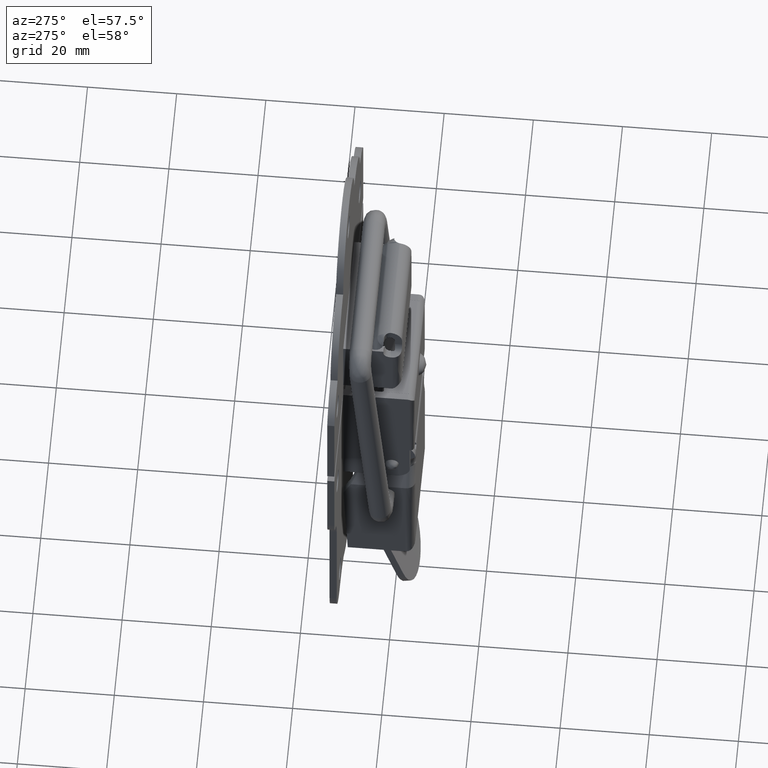
[diagram: clean part render]
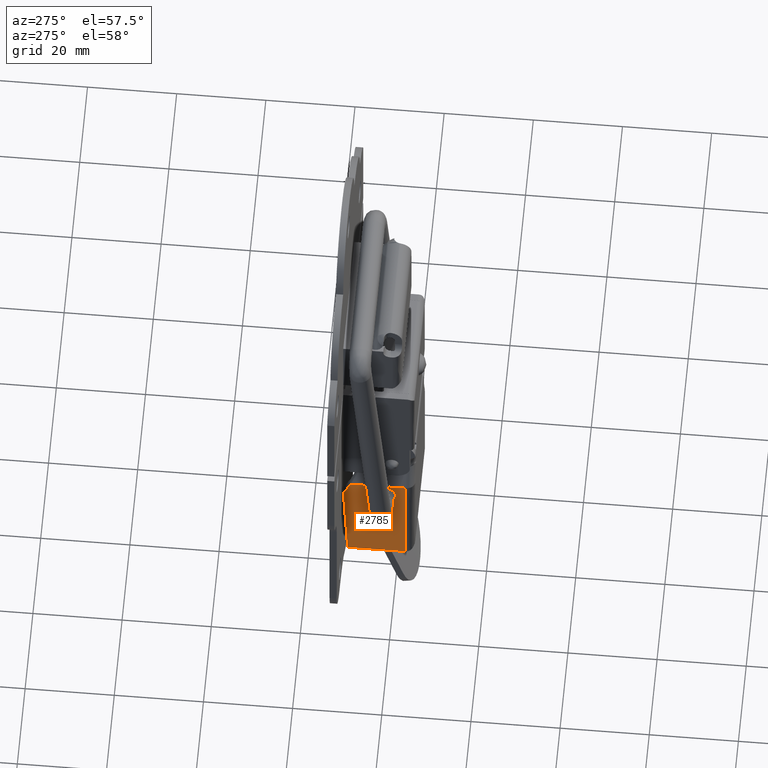
[diagram: same view with one face highlighted and labeled with its STEP entity id]
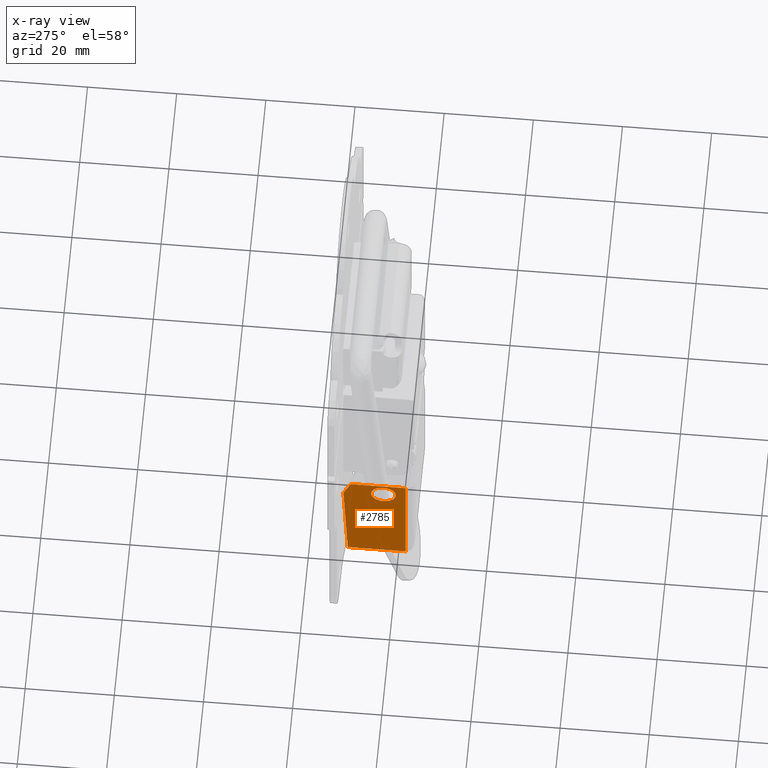
[diagram: x-ray of the same camera — body ghosted, the highlighted face saturated]
A machine part, auxiliary view. The second image highlights one B-rep face of the part: STEP entity #2785.
The next image is the same camera in x-ray: the body ghosted, the highlighted face saturated — about 0% of this face is hidden behind the body in this view.
In plain terms, the highlighted face is a freeform B-spline surface patch.
Its self-contained STEP definition (entity closure, byte-faithful):
#868=CARTESIAN_POINT('',(-14.100000000000000,-0.841522903652968,-12.784240484018291));
#869=VERTEX_POINT('',#868);
#875=CARTESIAN_POINT('',(-14.100000000000000,1.900000000000090,-10.250000000000000));
#876=VERTEX_POINT('',#875);
#877=CARTESIAN_POINT('',(-14.100000000000000,1.900000000000090,-10.250000000000000));
#878=CARTESIAN_POINT('',(-14.100000000000001,-0.642076639870185,-10.249999999999998));
#879=CARTESIAN_POINT('',(-14.099999999999998,-0.841522903652968,-12.784240484018284));
#887=(BOUNDED_CURVE()B_SPLINE_CURVE(2,(#877,#878,#879),.UNSPECIFIED.,.F.,.U.)B_SPLINE_CURVE_WITH_KNOTS((3,3),(0.0,0.236331488048878),.UNSPECIFIED.)CURVE()GEOMETRIC_REPRESENTATION_ITEM()RATIONAL_B_SPLINE_CURVE((1.0,0.723120439033564,0.969723747295271))REPRESENTATION_ITEM(''));
#888=EDGE_CURVE('',#876,#869,#887,.T.);
#890=CARTESIAN_POINT('',(-14.100000000000000,4.641522903653148,-13.215759515981709));
#891=VERTEX_POINT('',#890);
#892=CARTESIAN_POINT('',(-14.099999999999998,4.641522903653148,-13.215759515981709));
#893=CARTESIAN_POINT('',(-14.100000000000005,4.650000000000090,-13.108046288681633));
#894=CARTESIAN_POINT('',(-14.100000000000000,4.650000000000090,-13.0));
#895=CARTESIAN_POINT('',(-14.100000000000000,4.650000000000090,-10.249999999999998));
#896=CARTESIAN_POINT('',(-14.100000000000000,1.900000000000090,-10.250000000000000));
#904=(BOUNDED_CURVE()B_SPLINE_CURVE(2,(#892,#893,#894,#895,#896),.UNSPECIFIED.,.F.,.U.)B_SPLINE_CURVE_WITH_KNOTS((3,2,3),(0.736331488048878,0.750000000000000,1.0),.UNSPECIFIED.)CURVE()GEOMETRIC_REPRESENTATION_ITEM()RATIONAL_B_SPLINE_CURVE((0.969723747295272,0.983986342152983,1.0,0.707106781186548,1.0))REPRESENTATION_ITEM(''));
#905=EDGE_CURVE('',#891,#876,#904,.T.);
#981=CARTESIAN_POINT('',(-14.100000000000000,1.900000000000090,-15.750000000000000));
#982=VERTEX_POINT('',#981);
#983=CARTESIAN_POINT('',(-14.100000000000000,1.900000000000090,-15.750000000000000));
#984=CARTESIAN_POINT('',(-14.099999999999994,4.442076639870369,-15.750000000000007));
#985=CARTESIAN_POINT('',(-14.099999999999998,4.641522903653148,-13.215759515981709));
#993=(BOUNDED_CURVE()B_SPLINE_CURVE(2,(#983,#984,#985),.UNSPECIFIED.,.F.,.U.)B_SPLINE_CURVE_WITH_KNOTS((3,3),(0.500000000000000,0.736331488048878),.UNSPECIFIED.)CURVE()GEOMETRIC_REPRESENTATION_ITEM()RATIONAL_B_SPLINE_CURVE((1.0,0.723120439033564,0.969723747295272))REPRESENTATION_ITEM(''));
#994=EDGE_CURVE('',#982,#891,#993,.T.);
#996=CARTESIAN_POINT('',(-14.099999999999994,-0.841522903652968,-12.784240484018291));
#997=CARTESIAN_POINT('',(-14.099999999999996,-0.849999999999910,-12.891953711318370));
#998=CARTESIAN_POINT('',(-14.100000000000000,-0.849999999999910,-13.0));
#999=CARTESIAN_POINT('',(-14.100000000000000,-0.849999999999910,-15.750000000000009));
#1000=CARTESIAN_POINT('',(-14.100000000000000,1.900000000000090,-15.750000000000000));
#1008=(BOUNDED_CURVE()B_SPLINE_CURVE(2,(#996,#997,#998,#999,#1000),.UNSPECIFIED.,.F.,.U.)B_SPLINE_CURVE_WITH_KNOTS((3,2,3),(0.236331488048878,0.250000000000000,0.500000000000000),.UNSPECIFIED.)CURVE()GEOMETRIC_REPRESENTATION_ITEM()RATIONAL_B_SPLINE_CURVE((0.969723747295271,0.983986342152983,1.0,0.707106781186548,1.0))REPRESENTATION_ITEM(''));
#1009=EDGE_CURVE('',#869,#982,#1008,.T.);
#1304=CARTESIAN_POINT('',(-14.100000000000000,-3.100000000000000,-36.0));
#1305=VERTEX_POINT('',#1304);
#1721=CARTESIAN_POINT('',(-14.100000000000000,-3.100000000000000,-9.728043546529980));
#1722=VERTEX_POINT('',#1721);
#1766=CARTESIAN_POINT('',(-14.100000000000000,-3.100000000000000,-36.0));
#1767=CARTESIAN_POINT('',(-14.100000000000000,-3.100000000000000,-9.728043546529980));
#1768=QUASI_UNIFORM_CURVE('',1,(#1766,#1767),.UNSPECIFIED.,.F.,.U.);
#1769=EDGE_CURVE('',#1305,#1722,#1768,.T.);
#2612=CARTESIAN_POINT('',(-14.100000000000000,9.221299656915040,-9.728043546529980));
#2613=VERTEX_POINT('',#2612);
#2614=CARTESIAN_POINT('',(-14.100000000000000,9.221299656915040,-9.728043546529980));
#2615=CARTESIAN_POINT('',(-14.100000000000000,-3.100000000000000,-9.728043546529980));
#2616=QUASI_UNIFORM_CURVE('',1,(#2614,#2615),.UNSPECIFIED.,.F.,.U.);
#2617=EDGE_CURVE('',#2613,#1722,#2616,.T.);
#2751=CARTESIAN_POINT('',(-14.100000000000000,-3.798214053402038,-8.415759372599300));
#2752=CARTESIAN_POINT('',(-14.100000000000000,11.576474298090380,-8.415759372599300));
#2753=CARTESIAN_POINT('',(-14.100000000000000,-3.798214053402038,-37.312284878599463));
#2754=CARTESIAN_POINT('',(-14.100000000000000,11.576474298090380,-37.312284878599463));
#2755=B_SPLINE_SURFACE_WITH_KNOTS('',1,1,((#2751,#2753),(#2752,#2754)),.UNSPECIFIED.,.F.,.F.,.U.,(2,2),(2,2),(0.0,15.374688351492420),(0.0,28.896525506000160),.UNSPECIFIED.);
#2756=CARTESIAN_POINT('',(-14.100000000000000,9.900000000000000,-36.0));
#2757=VERTEX_POINT('',#2756);
#2758=CARTESIAN_POINT('',(-14.100000000000000,9.900000000000000,-36.0));
#2759=CARTESIAN_POINT('',(-14.100000000000000,-3.100000000000000,-36.0));
#2760=QUASI_UNIFORM_CURVE('',1,(#2758,#2759),.UNSPECIFIED.,.F.,.U.);
#2761=EDGE_CURVE('',#2757,#1305,#2760,.T.);
#2762=ORIENTED_EDGE('',*,*,#2761,.T.);
#2763=ORIENTED_EDGE('',*,*,#1769,.T.);
#2764=ORIENTED_EDGE('',*,*,#2617,.F.);
#2765=CARTESIAN_POINT('',(-14.100000000000000,10.878260869565301,-13.500000000000000));
#2766=VERTEX_POINT('',#2765);
#2767=CARTESIAN_POINT('',(-14.100000000000000,9.221299656915040,-9.728043546529980));
#2768=CARTESIAN_POINT('',(-14.100000000000000,10.878260869565301,-13.500000000000000));
#2769=QUASI_UNIFORM_CURVE('',1,(#2767,#2768),.UNSPECIFIED.,.F.,.U.);
#2770=EDGE_CURVE('',#2613,#2766,#2769,.T.);
#2771=ORIENTED_EDGE('',*,*,#2770,.T.);
#2772=CARTESIAN_POINT('',(-14.100000000000000,10.878260869565301,-13.500000000000000));
#2773=CARTESIAN_POINT('',(-14.100000000000000,9.900000000000000,-36.0));
#2774=QUASI_UNIFORM_CURVE('',1,(#2772,#2773),.UNSPECIFIED.,.F.,.U.);
#2775=EDGE_CURVE('',#2766,#2757,#2774,.T.);
#2776=ORIENTED_EDGE('',*,*,#2775,.T.);
#2777=EDGE_LOOP('',(#2762,#2763,#2764,#2771,#2776));
#2778=FACE_OUTER_BOUND('',#2777,.T.);
#2779=ORIENTED_EDGE('',*,*,#994,.T.);
#2780=ORIENTED_EDGE('',*,*,#905,.T.);
#2781=ORIENTED_EDGE('',*,*,#888,.T.);
#2782=ORIENTED_EDGE('',*,*,#1009,.T.);
#2783=EDGE_LOOP('',(#2779,#2780,#2781,#2782));
#2784=FACE_BOUND('',#2783,.T.);
#2785=ADVANCED_FACE('',(#2778,#2784),#2755,.T.);